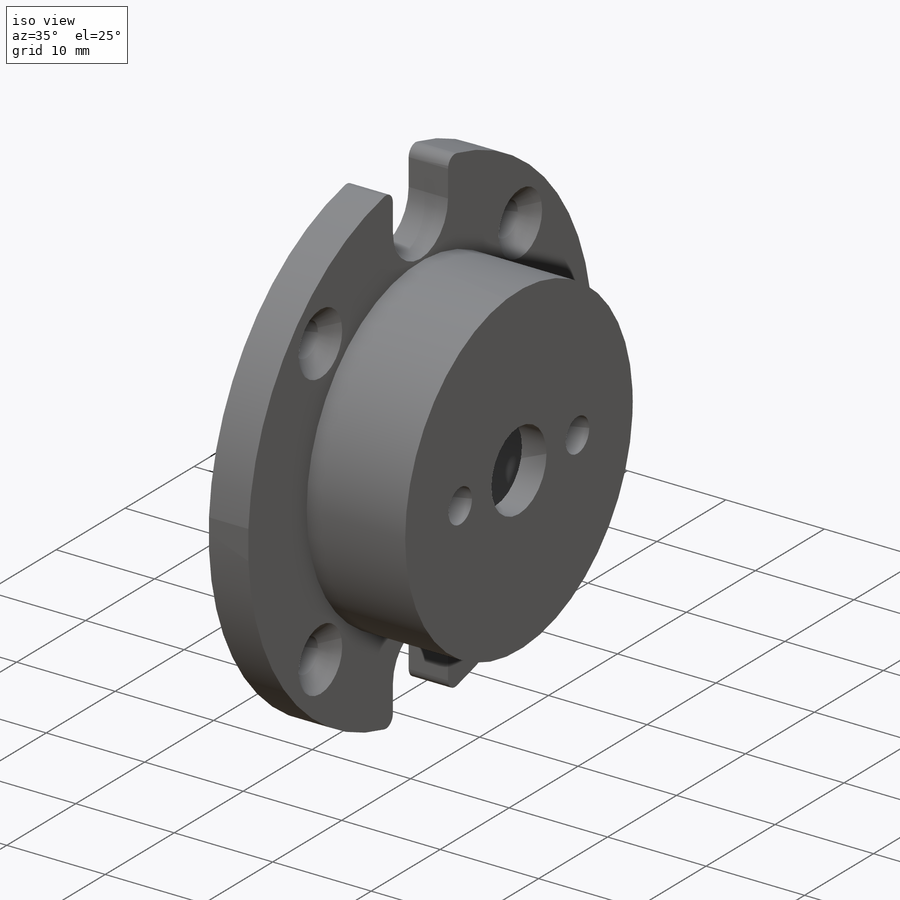
[diagram: iso view]
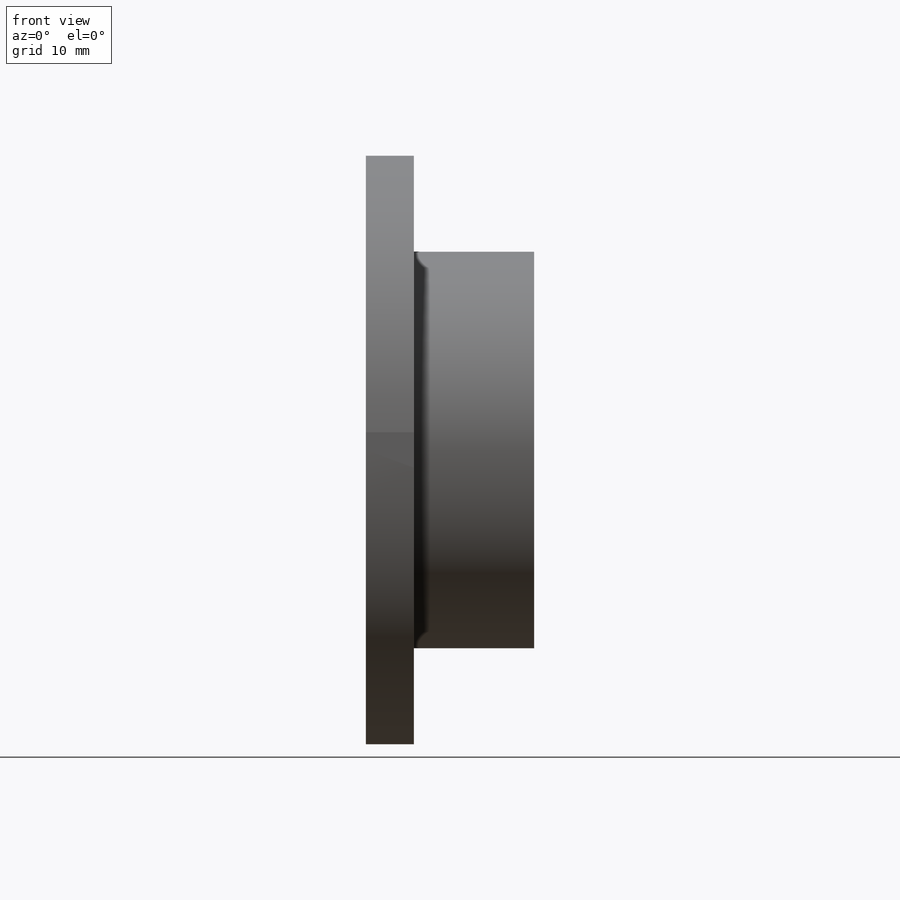
[diagram: front view]
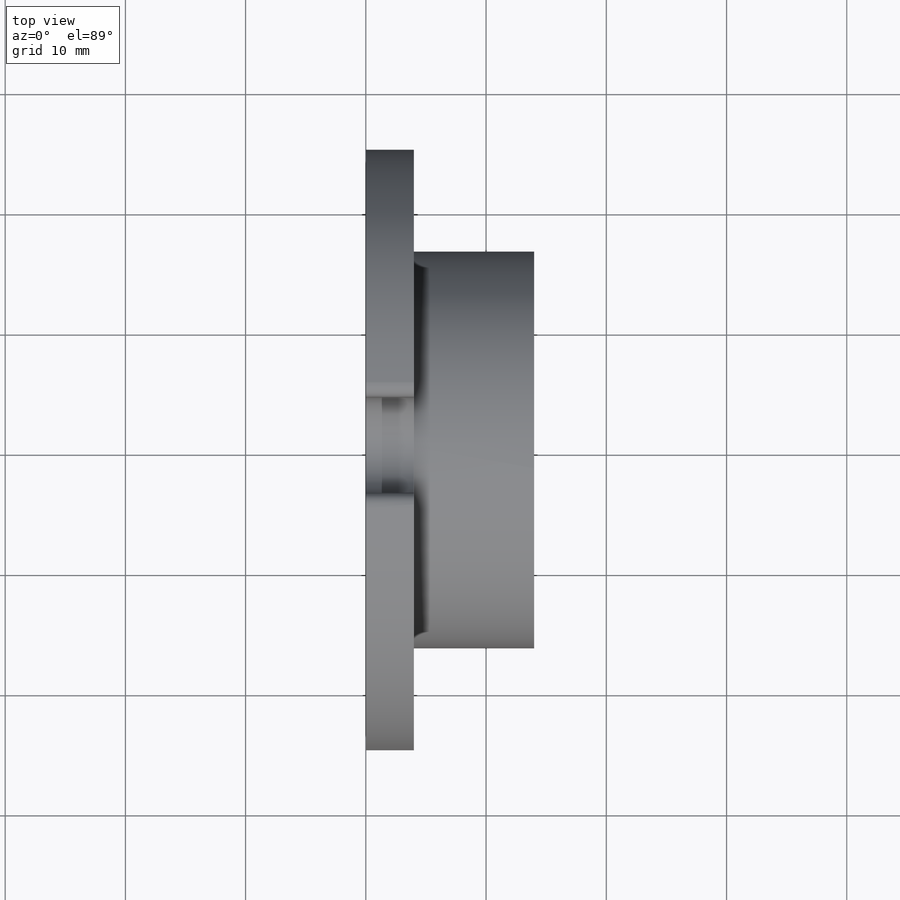
[diagram: top view]
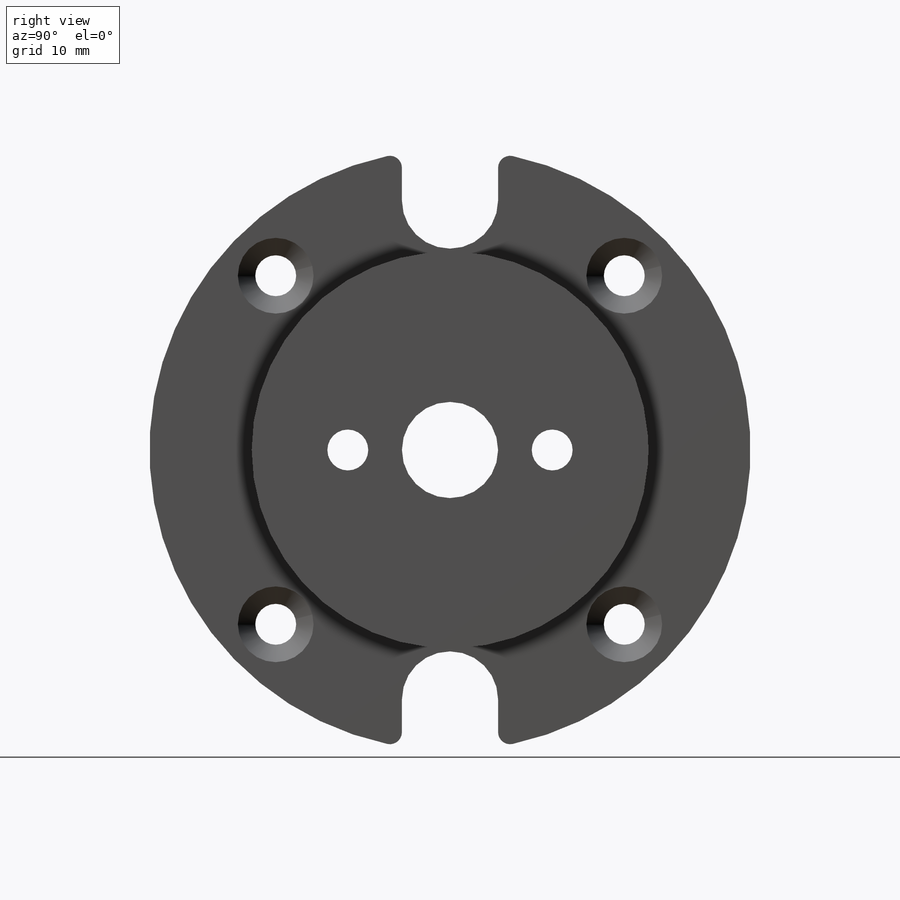
[diagram: right view]
SOLIDWORKS PART (.sldprt)
format: sldprt  version: not decoded by parser v0  size: 268,288 bytes
history: native  units: mm
features: sketch x11, cut_extrude x4, extrude x2, hole x2, material x1, pattern_circular x1 (+12 scaffold rows collapsed)
feature tree (33):
  scaffold x12  (default folders/planes/origin — collapsed)
  material  "ABS"
  sketch  "Sketch1"  dims[D1=~29.904704mm]
  extrude  "Boss-Extrude1"  Depth=4mm
  sketch  "Sketch2"  dims[D1=~11.953965mm]
  extrude  "Boss-Extrude2"  Depth=10mm
  sketch  "Sketch3"  dims[D1=~9.179067mm]
  cut_extrude  "Cut-Extrude1"  Depth=2.5mm
  sketch  "Sketch4"  dims[D1=~4.180924mm]
  cut_extrude  "Cut-Extrude2"  Depth=4mm
  hole  "M3 Clearance Hole1"  Diameter=3.4mm Depth=10mm
  sketch  "Sketch6"  dims[D1=8.5mm D2=8.5mm]
  sketch  "Sketch5"  dims[hole-wizard template sketch: 49 standard entries collapsed; hole parameters kept: c15.Drill Angle=180.0deg]
  sketch  "Sketch7"  dims[D1=20.5mm]
  hole  "CSK for M3 Flat Head Machine Screw1"  Diameter=3.4mm Depth=4mm
  sketch  "Sketch9"
  sketch  "Sketch8"  dims[hole-wizard template sketch: 55 standard entries collapsed; hole parameters kept: c17.Thru Hole Depth=4.0mm c17.Near C'Sink Dia.=6.3mm c17.D4=~3.666174mm c17.Near C'Sink Angle=90.0deg]
  pattern_circular  "CirPattern1"  Count=4 Angle=360deg
  sketch  "Sketch10"  dims[D1=13.25mm]
  cut_extrude  "Cut-Extrude3"  [1 undecoded]
  sketch  "Sketch12"  dims[D1=1.0mm]
  cut_extrude  "Cut-Extrude4"  Depth=10mm
decode coverage: 18 of 20 modeling features carry decoded parameters
note: ~ marks probable driven/reference dimensions
note: 1 parameter value undecoded
note: suppression state not decoded; provenance and decode notes live in map.json
